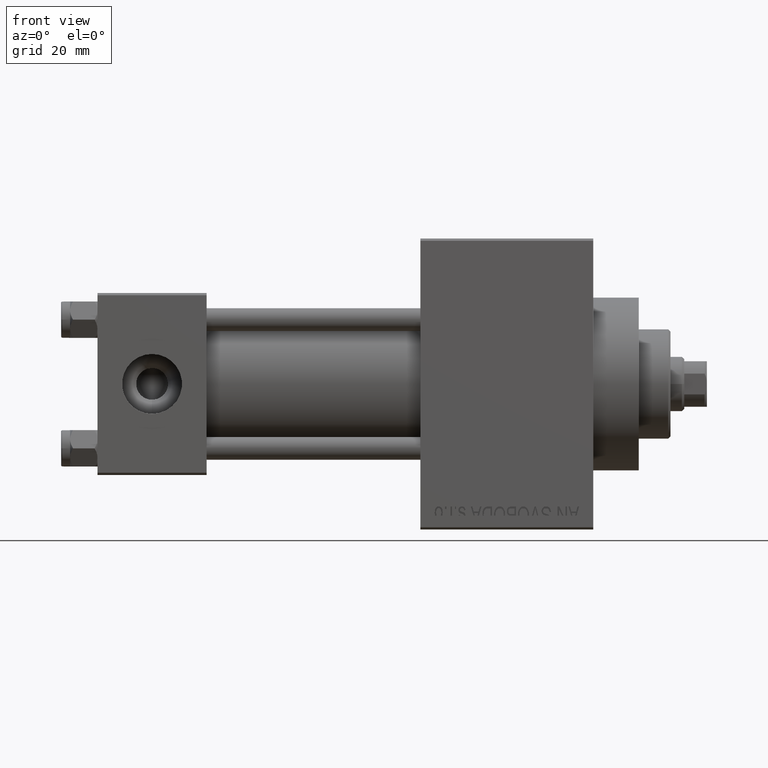
[diagram: clean part render]
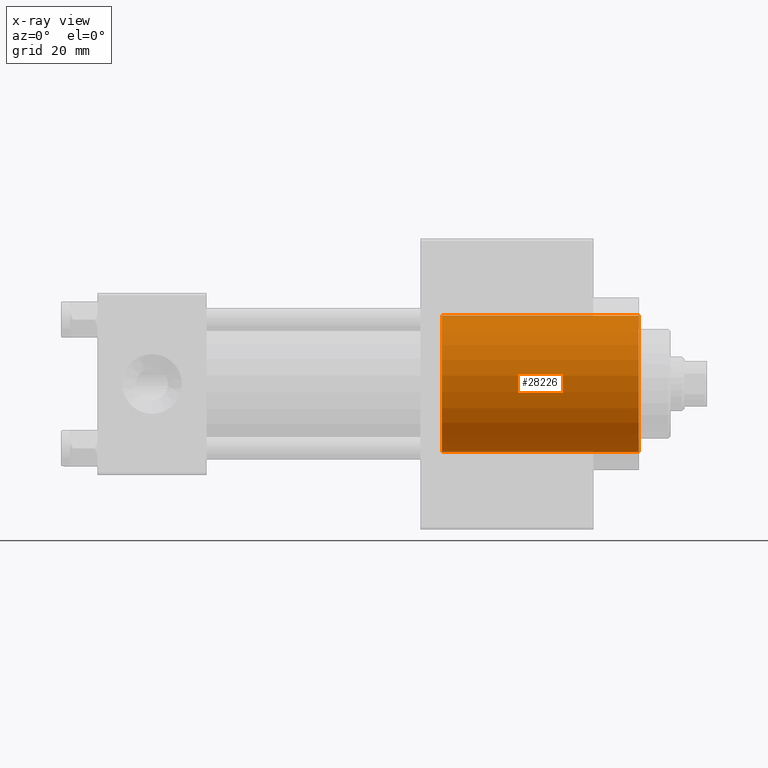
[diagram: x-ray — body ghosted, one internal face saturated and labeled with its STEP entity id]
A machine part, front view, then the same camera in x-ray: the body is ghosted and one INTERNAL B-rep face — a face not visible from any outside direction — is saturated and labeled: STEP entity #28226.
In plain terms, the highlighted cylindrical surface (partial cylindrical patch) has radius 15 mm, axis along (1, 0, 0).
Its self-contained STEP definition (entity closure, byte-faithful):
#54 = EDGE_CURVE ( 'NONE', #23053, #23861, #45398, .T. ) ;
#2085 = AXIS2_PLACEMENT_3D ( 'NONE', #38832, #6212, #13835 ) ;
#4196 = VERTEX_POINT ( 'NONE', #14191 ) ;
#4220 = EDGE_LOOP ( 'NONE', ( #12643, #41382, #19437, #42059 ) ) ;
#4385 = CARTESIAN_POINT ( 'NONE',  ( 119.0000000000000142, 0.000000000000000000, -15.00000000000000000 ) ) ;
#4956 = DIRECTION ( 'NONE',  ( 0.000000000000000000, 0.000000000000000000, -1.000000000000000000 ) ) ;
#6212 = DIRECTION ( 'NONE',  ( 1.000000000000000000, 0.000000000000000000, 0.000000000000000000 ) ) ;
#6406 = CYLINDRICAL_SURFACE ( 'NONE', #17758, 15.00000000000000000 ) ;
#10321 = CARTESIAN_POINT ( 'NONE',  ( 75.73999999999999488, 1.836970198721029589E-15, 15.00000000000000000 ) ) ;
#11620 = AXIS2_PLACEMENT_3D ( 'NONE', #45409, #27317, #4956 ) ;
#12643 = ORIENTED_EDGE ( 'NONE', *, *, #54, .F. ) ;
#13835 = DIRECTION ( 'NONE',  ( 0.000000000000000000, 0.000000000000000000, -1.000000000000000000 ) ) ;
#14026 = DIRECTION ( 'NONE',  ( 0.000000000000000000, 0.000000000000000000, -1.000000000000000000 ) ) ;
#14179 = CARTESIAN_POINT ( 'NONE',  ( 75.73999999999999488, 0.000000000000000000, -15.00000000000000000 ) ) ;
#14191 = CARTESIAN_POINT ( 'NONE',  ( 119.0000000000000142, 1.836970198721029589E-15, 15.00000000000000000 ) ) ;
#17274 = LINE ( 'NONE', #14179, #29141 ) ;
#17758 = AXIS2_PLACEMENT_3D ( 'NONE', #28066, #35435, #14026 ) ;
#19437 = ORIENTED_EDGE ( 'NONE', *, *, #25915, .T. ) ;
#23053 = VERTEX_POINT ( 'NONE', #30208 ) ;
#23861 = VERTEX_POINT ( 'NONE', #34796 ) ;
#24867 = DIRECTION ( 'NONE',  ( 1.000000000000000000, -0.000000000000000000, -0.000000000000000000 ) ) ;
#25915 = EDGE_CURVE ( 'NONE', #4196, #30605, #43475, .T. ) ;
#27317 = DIRECTION ( 'NONE',  ( 1.000000000000000000, 0.000000000000000000, 0.000000000000000000 ) ) ;
#28066 = CARTESIAN_POINT ( 'NONE',  ( 75.73999999999999488, 0.000000000000000000, 0.000000000000000000 ) ) ;
#28226 = ADVANCED_FACE ( 'NONE', ( #43276 ), #6406, .F. ) ;
#29141 = VECTOR ( 'NONE', #24867, 1000.000000000000000 ) ;
#30208 = CARTESIAN_POINT ( 'NONE',  ( 75.73999999999999488, 1.836970198721029589E-15, 15.00000000000000000 ) ) ;
#30605 = VERTEX_POINT ( 'NONE', #4385 ) ;
#31793 = EDGE_CURVE ( 'NONE', #23861, #30605, #17274, .T. ) ;
#32908 = LINE ( 'NONE', #10321, #40757 ) ;
#34796 = CARTESIAN_POINT ( 'NONE',  ( 75.73999999999999488, 0.000000000000000000, -15.00000000000000000 ) ) ;
#35435 = DIRECTION ( 'NONE',  ( 1.000000000000000000, -0.000000000000000000, -0.000000000000000000 ) ) ;
#38368 = EDGE_CURVE ( 'NONE', #23053, #4196, #32908, .T. ) ;
#38832 = CARTESIAN_POINT ( 'NONE',  ( 75.73999999999999488, 0.000000000000000000, 0.000000000000000000 ) ) ;
#40757 = VECTOR ( 'NONE', #46732, 1000.000000000000000 ) ;
#41382 = ORIENTED_EDGE ( 'NONE', *, *, #38368, .T. ) ;
#42059 = ORIENTED_EDGE ( 'NONE', *, *, #31793, .F. ) ;
#43276 = FACE_OUTER_BOUND ( 'NONE', #4220, .T. ) ;
#43475 = CIRCLE ( 'NONE', #11620, 15.00000000000000000 ) ;
#45398 = CIRCLE ( 'NONE', #2085, 15.00000000000000000 ) ;
#45409 = CARTESIAN_POINT ( 'NONE',  ( 119.0000000000000142, 0.000000000000000000, 0.000000000000000000 ) ) ;
#46732 = DIRECTION ( 'NONE',  ( 1.000000000000000000, -0.000000000000000000, -0.000000000000000000 ) ) ;